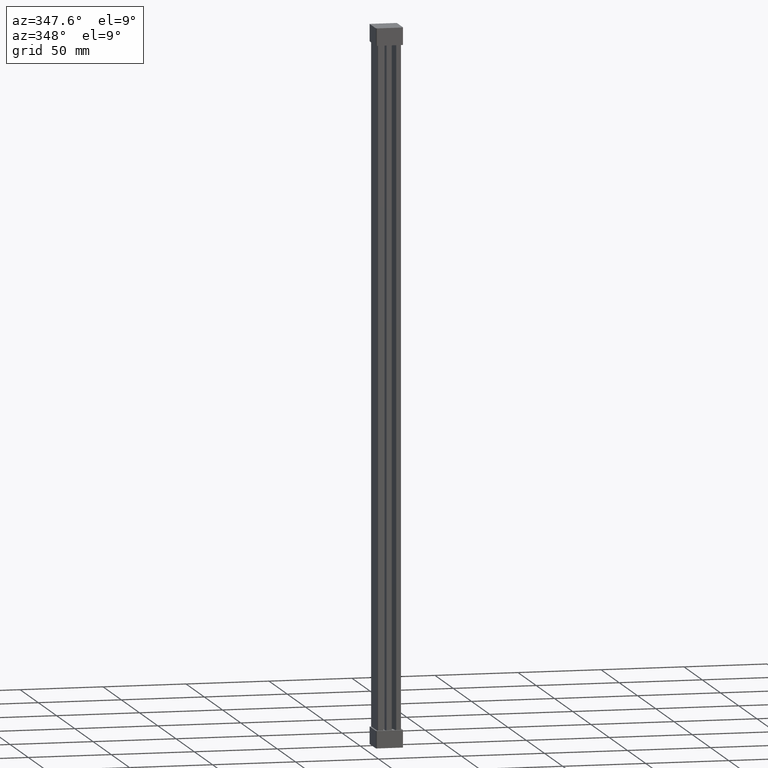
[diagram: clean part render]
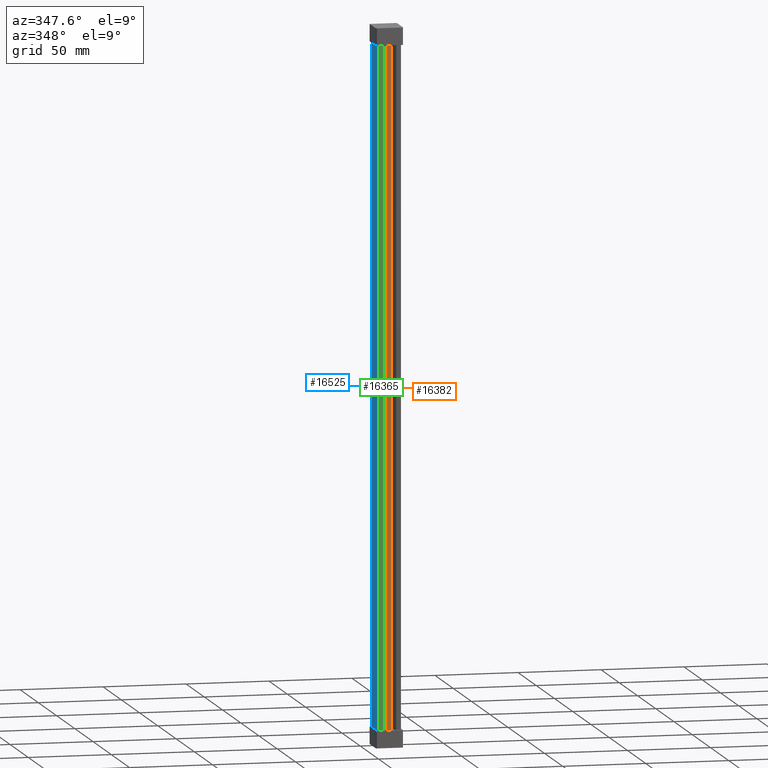
[diagram: same view with three faces highlighted in distinct colors, each labeled with its STEP entity id]
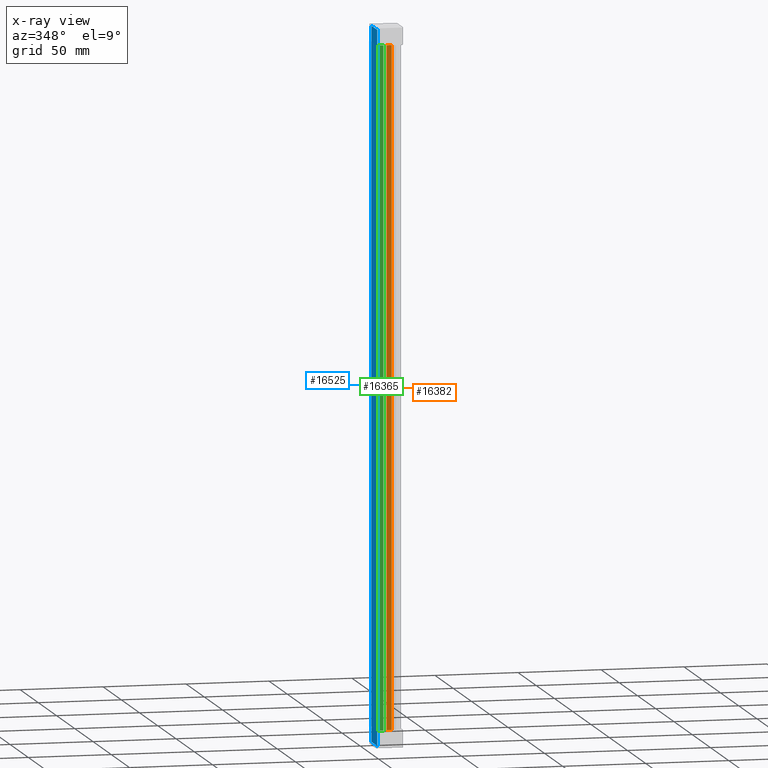
[diagram: x-ray of the same camera — body ghosted, the three highlighted faces saturated]
A machine part, auxiliary view with three faces highlighted in distinct colors.
The next image is the same camera in x-ray (body ghosted, the three faces saturated) — at least one of them is partly hidden behind the body in this view.
Their STEP definitions:

[orange] entity #16382 — the highlighted planar face has unit normal (0, 1, 0).
#7477 = EDGE_CURVE ( 'NONE', #38423, #38393, #15447, .T. ) ;
#7493 = EDGE_CURVE ( 'NONE', #38403, #38423, #15528, .T. ) ;
#7497 = EDGE_CURVE ( 'NONE', #38393, #38433, #14425, .T. ) ;
#7503 = EDGE_CURVE ( 'NONE', #38433, #38403, #13355, .T. ) ;
#13355 = LINE ( 'NONE', #13464, #40309 ) ;
#13464 = CARTESIAN_POINT ( 'NONE',  ( 4.849999999999909900, -2.775557561562891400E-013, 219.0000000000000000 ) ) ;
#13479 = DIRECTION ( 'NONE',  ( 0.0000000000000000000, -0.0000000000000000000, 1.000000000000000000 ) ) ;
#14425 = LINE ( 'NONE', #14444, #40325 ) ;
#14444 = CARTESIAN_POINT ( 'NONE',  ( 6.466000000103465900, -2.775557561562891400E-013, -199.6000000000553600 ) ) ;
#14448 = DIRECTION ( 'NONE',  ( -1.000000000000000000, 0.0000000000000000000, -4.965472477636011600E-013 ) ) ;
#15447 = LINE ( 'NONE', #15453, #40278 ) ;
#15453 = CARTESIAN_POINT ( 'NONE',  ( 7.950000000000123600, -2.775557561562891400E-013, 219.0000000000000000 ) ) ;
#15468 = DIRECTION ( 'NONE',  ( -0.0000000000000000000, 0.0000000000000000000, -1.000000000000000000 ) ) ;
#15522 = DIRECTION ( 'NONE',  ( 1.000000000000000000, 0.0000000000000000000, -4.965472477636011600E-013 ) ) ;
#15528 = LINE ( 'NONE', #15530, #40332 ) ;
#15530 = CARTESIAN_POINT ( 'NONE',  ( 6.466000000103465900, -2.775557561562891400E-013, 208.6000000000553900 ) ) ;
#15864 = CARTESIAN_POINT ( 'NONE',  ( 7.950000000000123600, -2.775557561562891400E-013, -199.6000000000546200 ) ) ;
#15893 = CARTESIAN_POINT ( 'NONE',  ( 4.849999999999909900, -2.775557561562891400E-013, 208.6000000000561800 ) ) ;
#15967 = CARTESIAN_POINT ( 'NONE',  ( 7.950000000000123600, -2.775557561562891400E-013, 208.6000000000546200 ) ) ;
#15981 = CARTESIAN_POINT ( 'NONE',  ( 4.849999999999909900, -2.775557561562891400E-013, -199.6000000000561800 ) ) ;
#16382 = ADVANCED_FACE ( 'NONE', ( #19913 ), #19917, .F. ) ;
#19913 = FACE_OUTER_BOUND ( 'NONE', #26251, .T. ) ;
#19915 = DIRECTION ( 'NONE',  ( 0.0000000000000000000, -0.0000000000000000000, 1.000000000000000000 ) ) ;
#19917 = PLANE ( 'NONE',  #35587 ) ;
#19935 = CARTESIAN_POINT ( 'NONE',  ( 6.525548534933072600, -2.775557561562891400E-013, 219.0000000000000000 ) ) ;
#19946 = DIRECTION ( 'NONE',  ( 0.0000000000000000000, 1.000000000000000000, 0.0000000000000000000 ) ) ;
#23649 = ORIENTED_EDGE ( 'NONE', *, *, #7477, .F. ) ;
#23657 = ORIENTED_EDGE ( 'NONE', *, *, #7493, .F. ) ;
#23672 = ORIENTED_EDGE ( 'NONE', *, *, #7503, .F. ) ;
#23685 = ORIENTED_EDGE ( 'NONE', *, *, #7497, .F. ) ;
#26251 = EDGE_LOOP ( 'NONE', ( #23657, #23672, #23685, #23649 ) ) ;
#35587 = AXIS2_PLACEMENT_3D ( 'NONE', #19935, #19946, #19915 ) ;
#38393 = VERTEX_POINT ( 'NONE', #15864 ) ;
#38403 = VERTEX_POINT ( 'NONE', #15893 ) ;
#38423 = VERTEX_POINT ( 'NONE', #15967 ) ;
#38433 = VERTEX_POINT ( 'NONE', #15981 ) ;
#40278 = VECTOR ( 'NONE', #15468, 1000.000000000000000 ) ;
#40309 = VECTOR ( 'NONE', #13479, 1000.000000000000000 ) ;
#40325 = VECTOR ( 'NONE', #14448, 1000.000000000000000 ) ;
#40332 = VECTOR ( 'NONE', #15522, 1000.000000000000000 ) ;

[blue] entity #16525 — the highlighted planar face has unit normal (-1, 0, 0).
#7618 = EDGE_CURVE ( 'NONE', #25937, #25918, #13829, .T. ) ;
#7642 = EDGE_CURVE ( 'NONE', #25918, #25952, #13905, .T. ) ;
#7647 = EDGE_CURVE ( 'NONE', #25934, #25937, #13913, .T. ) ;
#7651 = EDGE_CURVE ( 'NONE', #25900, #25940, #13943, .T. ) ;
#7652 = EDGE_CURVE ( 'NONE', #25952, #25900, #13941, .T. ) ;
#7660 = EDGE_CURVE ( 'NONE', #25940, #25934, #13936, .T. ) ;
#13829 = LINE ( 'NONE', #13847, #40489 ) ;
#13847 = CARTESIAN_POINT ( 'NONE',  ( -0.6240000000000689400, 1.249999999999640300, 217.7999999999999800 ) ) ;
#13862 = DIRECTION ( 'NONE',  ( 0.0000000000000000000, 1.000000000000000000, 0.0000000000000000000 ) ) ;
#13897 = CARTESIAN_POINT ( 'NONE',  ( -0.6240000000000570600, 17.19999999999998500, 219.0000000000000000 ) ) ;
#13905 = LINE ( 'NONE', #13897, #40472 ) ;
#13906 = DIRECTION ( 'NONE',  ( -0.0000000000000000000, -0.0000000000000000000, -1.000000000000000000 ) ) ;
#13913 = LINE ( 'NONE', #13940, #40479 ) ;
#13914 = CARTESIAN_POINT ( 'NONE',  ( -0.6240000000000570600, -8.991461328757370800, -208.8000000000147100 ) ) ;
#13922 = CARTESIAN_POINT ( 'NONE',  ( -0.6240000000000570600, 0.5000000000000004400, 219.0000000000000000 ) ) ;
#13923 = DIRECTION ( 'NONE',  ( 0.0000000000000000000, 0.0000000000000000000, 1.000000000000000000 ) ) ;
#13926 = DIRECTION ( 'NONE',  ( -0.0000000000000000000, -1.000000000000000000, 0.0000000000000000000 ) ) ;
#13936 = LINE ( 'NONE', #13922, #40480 ) ;
#13940 = CARTESIAN_POINT ( 'NONE',  ( -0.6240000000000570600, -8.991461328757370800, 217.8000000000587600 ) ) ;
#13941 = LINE ( 'NONE', #13954, #40507 ) ;
#13943 = LINE ( 'NONE', #13914, #40510 ) ;
#13946 = DIRECTION ( 'NONE',  ( 0.0000000000000000000, 1.000000000000000000, -0.0000000000000000000 ) ) ;
#13954 = CARTESIAN_POINT ( 'NONE',  ( -0.6240000000000689400, 11.69096289031699800, -208.7999999999999800 ) ) ;
#13956 = DIRECTION ( 'NONE',  ( 0.0000000000000000000, -1.000000000000000000, -3.636195823394557300E-017 ) ) ;
#16525 = ADVANCED_FACE ( 'NONE', ( #20633 ), #20640, .T. ) ;
#20602 = CARTESIAN_POINT ( 'NONE',  ( -0.6240000000000570600, -8.991461328757370800, 219.0000000000000000 ) ) ;
#20619 = DIRECTION ( 'NONE',  ( -1.000000000000000000, 0.0000000000000000000, 0.0000000000000000000 ) ) ;
#20633 = FACE_OUTER_BOUND ( 'NONE', #26376, .T. ) ;
#20637 = DIRECTION ( 'NONE',  ( 0.0000000000000000000, 0.0000000000000000000, 1.000000000000000000 ) ) ;
#20640 = PLANE ( 'NONE',  #35955 ) ;
#23921 = ORIENTED_EDGE ( 'NONE', *, *, #7660, .T. ) ;
#23923 = ORIENTED_EDGE ( 'NONE', *, *, #7652, .T. ) ;
#23941 = ORIENTED_EDGE ( 'NONE', *, *, #7642, .T. ) ;
#23954 = ORIENTED_EDGE ( 'NONE', *, *, #7651, .T. ) ;
#23957 = ORIENTED_EDGE ( 'NONE', *, *, #7618, .T. ) ;
#23975 = ORIENTED_EDGE ( 'NONE', *, *, #7647, .T. ) ;
#25900 = VERTEX_POINT ( 'NONE', #28003 ) ;
#25918 = VERTEX_POINT ( 'NONE', #27939 ) ;
#25934 = VERTEX_POINT ( 'NONE', #27967 ) ;
#25937 = VERTEX_POINT ( 'NONE', #27989 ) ;
#25940 = VERTEX_POINT ( 'NONE', #27991 ) ;
#25952 = VERTEX_POINT ( 'NONE', #28098 ) ;
#26376 = EDGE_LOOP ( 'NONE', ( #23941, #23923, #23954, #23921, #23975, #23957 ) ) ;
#27939 = CARTESIAN_POINT ( 'NONE',  ( -0.6240000000000629500, 17.19999999999998500, 217.7999999999999800 ) ) ;
#27967 = CARTESIAN_POINT ( 'NONE',  ( -0.6240000000000570600, 0.5000000000000004400, 217.8000000000587000 ) ) ;
#27989 = CARTESIAN_POINT ( 'NONE',  ( -0.6240000000000643900, 16.49999999999970900, 217.8000000000183700 ) ) ;
#27991 = CARTESIAN_POINT ( 'NONE',  ( -0.6240000000000570600, 0.5000000000000004400, -208.8000000000220700 ) ) ;
#28003 = CARTESIAN_POINT ( 'NONE',  ( -0.6240000000000650600, 16.49999999999970900, -208.8000000000184300 ) ) ;
#28098 = CARTESIAN_POINT ( 'NONE',  ( -0.6240000000000629500, 17.19999999999998500, -208.7999999999999800 ) ) ;
#35955 = AXIS2_PLACEMENT_3D ( 'NONE', #20602, #20619, #20637 ) ;
#40472 = VECTOR ( 'NONE', #13906, 1000.000000000000000 ) ;
#40479 = VECTOR ( 'NONE', #13946, 1000.000000000000000 ) ;
#40480 = VECTOR ( 'NONE', #13923, 1000.000000000000000 ) ;
#40489 = VECTOR ( 'NONE', #13862, 1000.000000000000000 ) ;
#40507 = VECTOR ( 'NONE', #13956, 1000.000000000000000 ) ;
#40510 = VECTOR ( 'NONE', #13926, 1000.000000000000000 ) ;

[green] entity #16365 — the highlighted planar face has unit normal (0, 1, 0).
#7605 = EDGE_CURVE ( 'NONE', #25945, #25859, #13808, .T. ) ;
#7634 = EDGE_CURVE ( 'NONE', #25859, #25871, #13866, .T. ) ;
#7654 = EDGE_CURVE ( 'NONE', #25910, #25945, #13915, .T. ) ;
#7682 = EDGE_CURVE ( 'NONE', #25871, #25910, #14024, .T. ) ;
#13790 = DIRECTION ( 'NONE',  ( -0.0000000000000000000, 0.0000000000000000000, -1.000000000000000000 ) ) ;
#13808 = LINE ( 'NONE', #13819, #40459 ) ;
#13819 = CARTESIAN_POINT ( 'NONE',  ( 2.900000000000013700, 0.0000000000000000000, 219.0000000000000000 ) ) ;
#13839 = CARTESIAN_POINT ( 'NONE',  ( 6.466000000103465900, 0.0000000000000000000, -199.6000000000553600 ) ) ;
#13866 = LINE ( 'NONE', #13839, #40526 ) ;
#13891 = DIRECTION ( 'NONE',  ( -1.000000000000000000, 0.0000000000000000000, -4.965472477636011600E-013 ) ) ;
#13915 = LINE ( 'NONE', #13955, #40512 ) ;
#13929 = DIRECTION ( 'NONE',  ( 1.000000000000000000, 0.0000000000000000000, -4.965472477636011600E-013 ) ) ;
#13955 = CARTESIAN_POINT ( 'NONE',  ( 6.466000000103465900, 0.0000000000000000000, 208.6000000000553900 ) ) ;
#14021 = DIRECTION ( 'NONE',  ( 0.0000000000000000000, 0.0000000000000000000, 1.000000000000000000 ) ) ;
#14024 = LINE ( 'NONE', #14037, #40548 ) ;
#14037 = CARTESIAN_POINT ( 'NONE',  ( -0.1240000000000007600, -2.775557561562891400E-014, 219.0000000000000000 ) ) ;
#16365 = ADVANCED_FACE ( 'NONE', ( #19877 ), #19872, .F. ) ;
#19872 = PLANE ( 'NONE',  #35667 ) ;
#19876 = DIRECTION ( 'NONE',  ( 0.0000000000000000000, 1.000000000000000000, 0.0000000000000000000 ) ) ;
#19877 = FACE_OUTER_BOUND ( 'NONE', #26385, .T. ) ;
#19888 = CARTESIAN_POINT ( 'NONE',  ( 6.525548534933072600, 0.0000000000000000000, 219.0000000000000000 ) ) ;
#19889 = DIRECTION ( 'NONE',  ( 0.0000000000000000000, -0.0000000000000000000, 1.000000000000000000 ) ) ;
#23854 = ORIENTED_EDGE ( 'NONE', *, *, #7682, .F. ) ;
#23855 = ORIENTED_EDGE ( 'NONE', *, *, #7634, .F. ) ;
#23865 = ORIENTED_EDGE ( 'NONE', *, *, #7605, .F. ) ;
#23879 = ORIENTED_EDGE ( 'NONE', *, *, #7654, .F. ) ;
#25859 = VERTEX_POINT ( 'NONE', #27901 ) ;
#25871 = VERTEX_POINT ( 'NONE', #27893 ) ;
#25910 = VERTEX_POINT ( 'NONE', #27983 ) ;
#25945 = VERTEX_POINT ( 'NONE', #28078 ) ;
#26385 = EDGE_LOOP ( 'NONE', ( #23879, #23854, #23855, #23865 ) ) ;
#27893 = CARTESIAN_POINT ( 'NONE',  ( -0.1240000000000007900, -1.249000902703301100E-013, -199.6000000000586600 ) ) ;
#27901 = CARTESIAN_POINT ( 'NONE',  ( 2.900000000000013700, 0.0000000000000000000, -199.6000000000571500 ) ) ;
#27983 = CARTESIAN_POINT ( 'NONE',  ( -0.1240000000000007900, -1.249000902703301100E-013, 208.6000000000586600 ) ) ;
#28078 = CARTESIAN_POINT ( 'NONE',  ( 2.900000000000013700, 0.0000000000000000000, 208.6000000000571500 ) ) ;
#35667 = AXIS2_PLACEMENT_3D ( 'NONE', #19888, #19876, #19889 ) ;
#40459 = VECTOR ( 'NONE', #13790, 1000.000000000000000 ) ;
#40512 = VECTOR ( 'NONE', #13929, 1000.000000000000000 ) ;
#40526 = VECTOR ( 'NONE', #13891, 1000.000000000000000 ) ;
#40548 = VECTOR ( 'NONE', #14021, 1000.000000000000000 ) ;